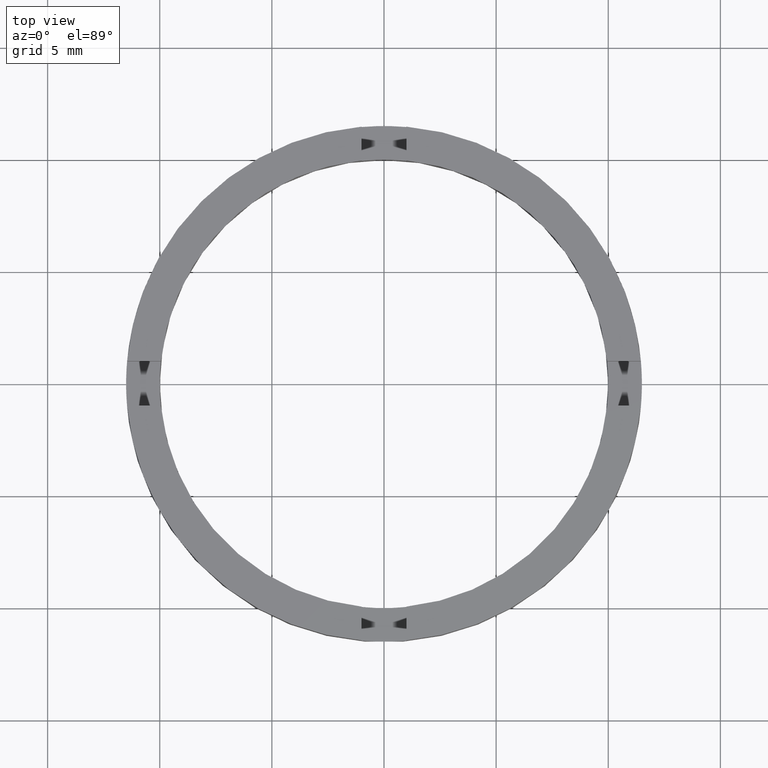
[diagram: clean part render]
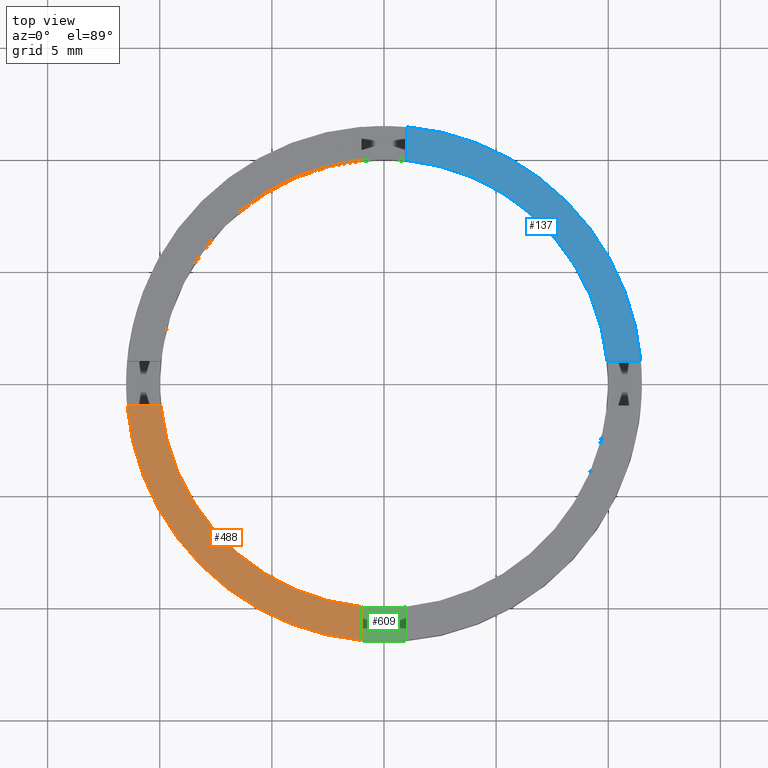
[diagram: same view with three faces highlighted in distinct colors, each labeled with its STEP entity id]
A machine part, top view with three faces highlighted in distinct colors.
Their STEP definitions:

[orange] entity #488 — the highlighted planar face has unit normal (0, 0, 1).
#4 = EDGE_CURVE ( 'NONE', #436, #29, #176, .T. ) ;
#25 = DIRECTION ( 'NONE',  ( 0.000000000000000000, 0.000000000000000000, 1.000000000000000000 ) ) ;
#29 = VERTEX_POINT ( 'NONE', #291 ) ;
#34 = CARTESIAN_POINT ( 'NONE',  ( -1.500000000000185185, -1.000000000000020206, 2.500000000000000000 ) ) ;
#48 = ORIENTED_EDGE ( 'NONE', *, *, #713, .F. ) ;
#57 = CARTESIAN_POINT ( 'NONE',  ( -1.000000000000163869, -9.949874371066179890, 2.500000000000000000 ) ) ;
#78 = PLANE ( 'NONE',  #212 ) ;
#85 = DIRECTION ( 'NONE',  ( 1.000000000000000000, 1.734723475976807341E-16, -0.000000000000000000 ) ) ;
#90 = CARTESIAN_POINT ( 'NONE',  ( 0.000000000000000000, 0.000000000000000000, 2.500000000000000000 ) ) ;
#98 = AXIS2_PLACEMENT_3D ( 'NONE', #90, #173, #231 ) ;
#143 = DIRECTION ( 'NONE',  ( 1.000000000000000000, 0.000000000000000000, -0.000000000000000000 ) ) ;
#173 = DIRECTION ( 'NONE',  ( 0.000000000000000000, 0.000000000000000000, 1.000000000000000000 ) ) ;
#176 = LINE ( 'NONE', #34, #433 ) ;
#179 = EDGE_LOOP ( 'NONE', ( #48, #264, #573, #543 ) ) ;
#208 = CARTESIAN_POINT ( 'NONE',  ( -1.000000000000163647, -11.45643923738958669, 2.500000000000000000 ) ) ;
#212 = AXIS2_PLACEMENT_3D ( 'NONE', #386, #25, #143 ) ;
#217 = VERTEX_POINT ( 'NONE', #208 ) ;
#231 = DIRECTION ( 'NONE',  ( 1.000000000000000000, 0.000000000000000000, 0.000000000000000000 ) ) ;
#264 = ORIENTED_EDGE ( 'NONE', *, *, #748, .F. ) ;
#291 = CARTESIAN_POINT ( 'NONE',  ( -9.949874371066195877, -1.000000000000021760, 2.500000000000000000 ) ) ;
#386 = CARTESIAN_POINT ( 'NONE',  ( 0.000000000000000000, 0.000000000000000000, 2.500000000000000000 ) ) ;
#390 = EDGE_CURVE ( 'NONE', #436, #217, #680, .T. ) ;
#431 = FACE_OUTER_BOUND ( 'NONE', #179, .T. ) ;
#433 = VECTOR ( 'NONE', #85, 1000.000000000000000 ) ;
#436 = VERTEX_POINT ( 'NONE', #768 ) ;
#460 = DIRECTION ( 'NONE',  ( 0.000000000000000000, 0.000000000000000000, 1.000000000000000000 ) ) ;
#467 = CIRCLE ( 'NONE', #759, 9.999999999999998224 ) ;
#475 = LINE ( 'NONE', #568, #731 ) ;
#488 = ADVANCED_FACE ( 'NONE', ( #431 ), #78, .T. ) ;
#521 = DIRECTION ( 'NONE',  ( 1.301042606982605567E-16, -1.000000000000000000, 0.000000000000000000 ) ) ;
#539 = VERTEX_POINT ( 'NONE', #57 ) ;
#543 = ORIENTED_EDGE ( 'NONE', *, *, #390, .T. ) ;
#568 = CARTESIAN_POINT ( 'NONE',  ( -1.000000000000164979, -1.500000000000181632, 2.500000000000000000 ) ) ;
#573 = ORIENTED_EDGE ( 'NONE', *, *, #4, .F. ) ;
#680 = CIRCLE ( 'NONE', #98, 11.50000000000000000 ) ;
#686 = CARTESIAN_POINT ( 'NONE',  ( 0.000000000000000000, 0.000000000000000000, 2.500000000000000000 ) ) ;
#713 = EDGE_CURVE ( 'NONE', #539, #217, #475, .T. ) ;
#731 = VECTOR ( 'NONE', #521, 1000.000000000000000 ) ;
#747 = DIRECTION ( 'NONE',  ( 1.000000000000000000, 0.000000000000000000, 0.000000000000000000 ) ) ;
#748 = EDGE_CURVE ( 'NONE', #29, #539, #467, .T. ) ;
#759 = AXIS2_PLACEMENT_3D ( 'NONE', #686, #460, #747 ) ;
#768 = CARTESIAN_POINT ( 'NONE',  ( -11.45643923738959735, -1.000000000000021982, 2.500000000000000000 ) ) ;

[blue] entity #137 — the highlighted planar face has unit normal (0, 0, 1).
#1 = CARTESIAN_POINT ( 'NONE',  ( 0.9999999999999754641, 11.45643923738960090, 2.500000000000000000 ) ) ;
#17 = CARTESIAN_POINT ( 'NONE',  ( 11.45643923738961334, 0.9999999999998400169, 2.500000000000000000 ) ) ;
#22 = DIRECTION ( 'NONE',  ( 0.000000000000000000, 0.000000000000000000, 1.000000000000000000 ) ) ;
#31 = ORIENTED_EDGE ( 'NONE', *, *, #342, .F. ) ;
#53 = ORIENTED_EDGE ( 'NONE', *, *, #74, .F. ) ;
#56 = DIRECTION ( 'NONE',  ( 1.000000000000000000, 0.000000000000000000, 0.000000000000000000 ) ) ;
#65 = CARTESIAN_POINT ( 'NONE',  ( 0.000000000000000000, 0.000000000000000000, 2.500000000000000000 ) ) ;
#74 = EDGE_CURVE ( 'NONE', #512, #328, #180, .T. ) ;
#105 = DIRECTION ( 'NONE',  ( 1.000000000000000000, 0.000000000000000000, 0.000000000000000000 ) ) ;
#129 = AXIS2_PLACEMENT_3D ( 'NONE', #619, #646, #56 ) ;
#131 = LINE ( 'NONE', #446, #417 ) ;
#137 = ADVANCED_FACE ( 'NONE', ( #454 ), #600, .T. ) ;
#164 = VECTOR ( 'NONE', #347, 1000.000000000000000 ) ;
#168 = VERTEX_POINT ( 'NONE', #17 ) ;
#180 = LINE ( 'NONE', #578, #164 ) ;
#185 = VERTEX_POINT ( 'NONE', #275 ) ;
#275 = CARTESIAN_POINT ( 'NONE',  ( 9.949874371066213641, 0.9999999999998400169, 2.500000000000000000 ) ) ;
#292 = ORIENTED_EDGE ( 'NONE', *, *, #624, .F. ) ;
#328 = VERTEX_POINT ( 'NONE', #1 ) ;
#330 = ORIENTED_EDGE ( 'NONE', *, *, #555, .T. ) ;
#342 = EDGE_CURVE ( 'NONE', #185, #512, #645, .T. ) ;
#347 = DIRECTION ( 'NONE',  ( 0.000000000000000000, 1.000000000000000000, 0.000000000000000000 ) ) ;
#354 = AXIS2_PLACEMENT_3D ( 'NONE', #753, #22, #482 ) ;
#400 = CIRCLE ( 'NONE', #456, 11.50000000000000000 ) ;
#417 = VECTOR ( 'NONE', #560, 1000.000000000000000 ) ;
#446 = CARTESIAN_POINT ( 'NONE',  ( 1.499999999999997780, 0.9999999999998395728, 2.500000000000000000 ) ) ;
#454 = FACE_OUTER_BOUND ( 'NONE', #562, .T. ) ;
#456 = AXIS2_PLACEMENT_3D ( 'NONE', #65, #654, #105 ) ;
#482 = DIRECTION ( 'NONE',  ( 1.000000000000000000, 0.000000000000000000, -0.000000000000000000 ) ) ;
#512 = VERTEX_POINT ( 'NONE', #612 ) ;
#555 = EDGE_CURVE ( 'NONE', #168, #328, #400, .T. ) ;
#560 = DIRECTION ( 'NONE',  ( -1.000000000000000000, -4.336808689942018352E-17, -0.000000000000000000 ) ) ;
#562 = EDGE_LOOP ( 'NONE', ( #53, #31, #292, #330 ) ) ;
#578 = CARTESIAN_POINT ( 'NONE',  ( 0.9999999999999754641, 1.500000000000001332, 2.500000000000000000 ) ) ;
#600 = PLANE ( 'NONE',  #354 ) ;
#612 = CARTESIAN_POINT ( 'NONE',  ( 0.9999999999999754641, 9.949874371066199430, 2.500000000000000000 ) ) ;
#619 = CARTESIAN_POINT ( 'NONE',  ( 0.000000000000000000, 0.000000000000000000, 2.500000000000000000 ) ) ;
#624 = EDGE_CURVE ( 'NONE', #168, #185, #131, .T. ) ;
#645 = CIRCLE ( 'NONE', #129, 9.999999999999998224 ) ;
#646 = DIRECTION ( 'NONE',  ( 0.000000000000000000, 0.000000000000000000, 1.000000000000000000 ) ) ;
#654 = DIRECTION ( 'NONE',  ( 0.000000000000000000, 0.000000000000000000, 1.000000000000000000 ) ) ;
#753 = CARTESIAN_POINT ( 'NONE',  ( 0.000000000000000000, 0.000000000000000000, 2.500000000000000000 ) ) ;

[green] entity #609 — the highlighted planar face has unit normal (-0, 0, 1).
#3 = CARTESIAN_POINT ( 'NONE',  ( 0.9999999999998350209, -1.500000000000181632, 1.500000000000000000 ) ) ;
#42 = CARTESIAN_POINT ( 'NONE',  ( 0.000000000000000000, 0.000000000000000000, 1.500000000000000000 ) ) ;
#110 = DIRECTION ( 'NONE',  ( 1.000000000000000000, 0.000000000000000000, 0.000000000000000000 ) ) ;
#111 = LINE ( 'NONE', #325, #408 ) ;
#116 = DIRECTION ( 'NONE',  ( -0.000000000000000000, 0.000000000000000000, 1.000000000000000000 ) ) ;
#130 = CIRCLE ( 'NONE', #484, 9.999999999999998224 ) ;
#170 = VERTEX_POINT ( 'NONE', #628 ) ;
#188 = DIRECTION ( 'NONE',  ( 1.000000000000000000, 0.000000000000000000, 0.000000000000000000 ) ) ;
#194 = DIRECTION ( 'NONE',  ( -1.301042606982605567E-16, 1.000000000000000000, -0.000000000000000000 ) ) ;
#218 = AXIS2_PLACEMENT_3D ( 'NONE', #42, #244, #615 ) ;
#244 = DIRECTION ( 'NONE',  ( -0.000000000000000000, 0.000000000000000000, 1.000000000000000000 ) ) ;
#245 = DIRECTION ( 'NONE',  ( -0.000000000000000000, 0.000000000000000000, 1.000000000000000000 ) ) ;
#306 = CARTESIAN_POINT ( 'NONE',  ( -1.000000000000163869, -9.949874371066179890, 1.500000000000000000 ) ) ;
#313 = ORIENTED_EDGE ( 'NONE', *, *, #614, .F. ) ;
#316 = VERTEX_POINT ( 'NONE', #306 ) ;
#325 = CARTESIAN_POINT ( 'NONE',  ( -1.000000000000164979, -1.500000000000181632, 1.500000000000000000 ) ) ;
#326 = CARTESIAN_POINT ( 'NONE',  ( 0.000000000000000000, 0.000000000000000000, 1.500000000000000000 ) ) ;
#339 = AXIS2_PLACEMENT_3D ( 'NONE', #361, #116, #188 ) ;
#348 = EDGE_CURVE ( 'NONE', #685, #426, #402, .T. ) ;
#361 = CARTESIAN_POINT ( 'NONE',  ( 0.000000000000000000, 0.000000000000000000, 1.500000000000000000 ) ) ;
#365 = EDGE_CURVE ( 'NONE', #316, #685, #111, .T. ) ;
#402 = CIRCLE ( 'NONE', #218, 11.50000000000000000 ) ;
#408 = VECTOR ( 'NONE', #540, 1000.000000000000000 ) ;
#409 = LINE ( 'NONE', #3, #674 ) ;
#426 = VERTEX_POINT ( 'NONE', #634 ) ;
#441 = ORIENTED_EDGE ( 'NONE', *, *, #576, .T. ) ;
#484 = AXIS2_PLACEMENT_3D ( 'NONE', #326, #245, #110 ) ;
#494 = PLANE ( 'NONE',  #339 ) ;
#513 = ORIENTED_EDGE ( 'NONE', *, *, #348, .T. ) ;
#516 = CARTESIAN_POINT ( 'NONE',  ( -1.000000000000163647, -11.45643923738958669, 1.500000000000000000 ) ) ;
#540 = DIRECTION ( 'NONE',  ( 1.301042606982605567E-16, -1.000000000000000000, 0.000000000000000000 ) ) ;
#576 = EDGE_CURVE ( 'NONE', #426, #170, #409, .T. ) ;
#586 = EDGE_LOOP ( 'NONE', ( #513, #441, #313, #752 ) ) ;
#609 = ADVANCED_FACE ( 'NONE', ( #662 ), #494, .T. ) ;
#614 = EDGE_CURVE ( 'NONE', #316, #170, #130, .T. ) ;
#615 = DIRECTION ( 'NONE',  ( 1.000000000000000000, 0.000000000000000000, 0.000000000000000000 ) ) ;
#628 = CARTESIAN_POINT ( 'NONE',  ( 0.9999999999998361311, -9.949874371066213641, 1.500000000000000000 ) ) ;
#634 = CARTESIAN_POINT ( 'NONE',  ( 0.9999999999998363531, -11.45643923738961334, 1.500000000000000000 ) ) ;
#662 = FACE_OUTER_BOUND ( 'NONE', #586, .T. ) ;
#674 = VECTOR ( 'NONE', #194, 1000.000000000000000 ) ;
#685 = VERTEX_POINT ( 'NONE', #516 ) ;
#752 = ORIENTED_EDGE ( 'NONE', *, *, #365, .T. ) ;